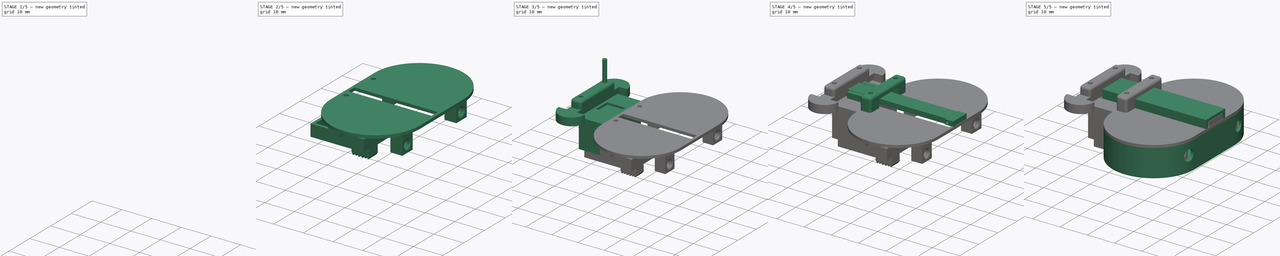
[diagram: build sequence overview — one tinted view per stage of 5, left to right]
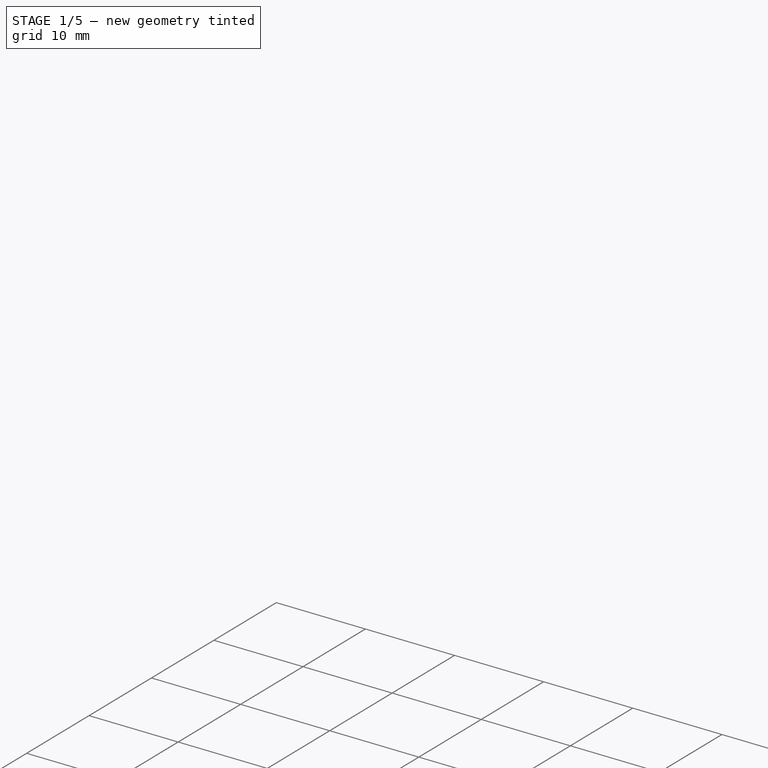
[diagram: stage 1 of 5 — iso view after this stage's code; geometry added in this stage tinted green]
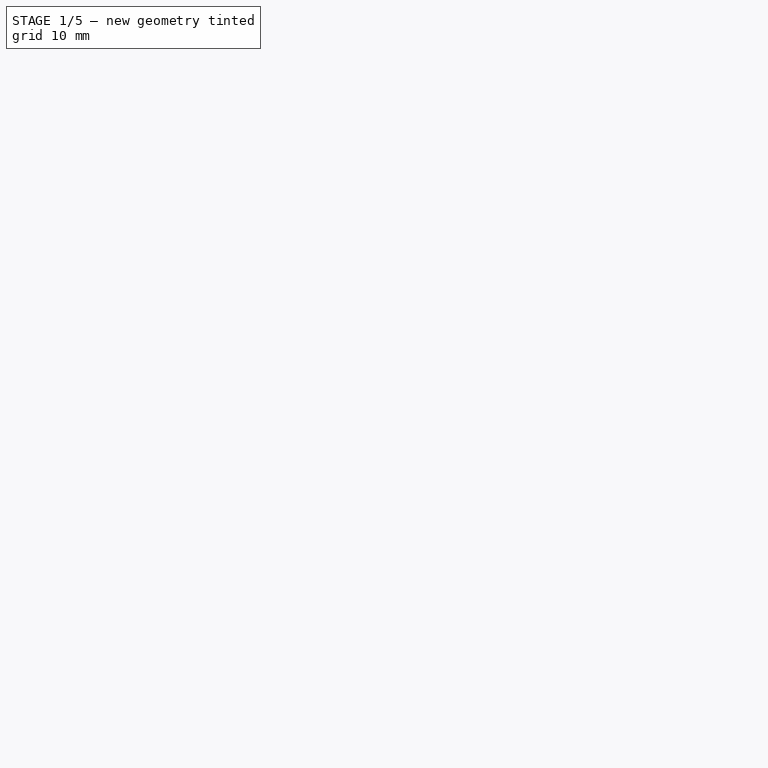
[diagram: stage 1 of 5 — front view after this stage's code; geometry added in this stage tinted green]
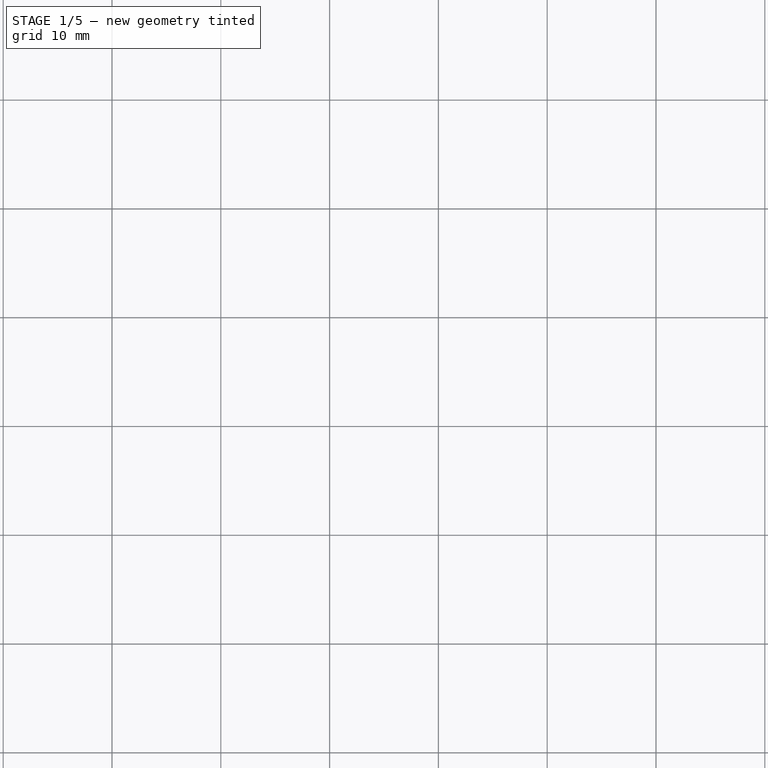
[diagram: stage 1 of 5 — top view after this stage's code; geometry added in this stage tinted green]
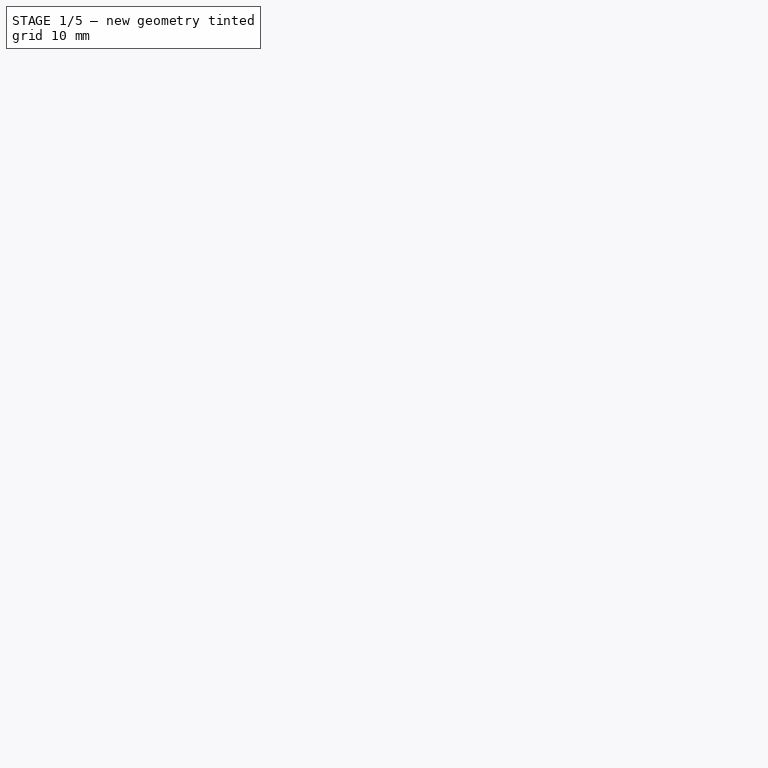
[diagram: stage 1 of 5 — right view after this stage's code; geometry added in this stage tinted green]
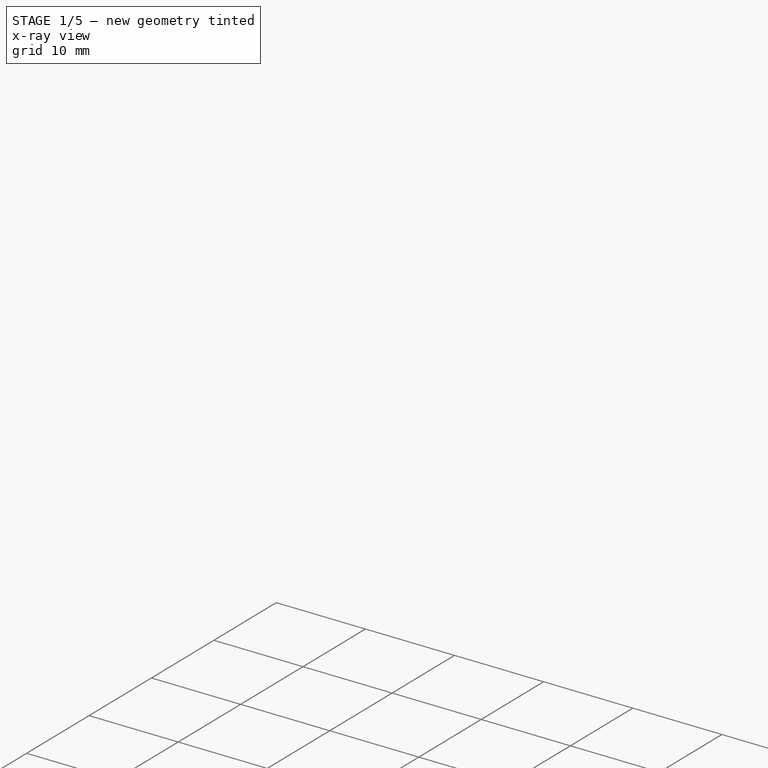
[diagram: stage 1 of 5 — x-ray composite at the iso view; earlier geometry ghosted, this stage's added geometry solid]
FCSTD DOCUMENT  (FreeCAD 0.16RUnknown)
Label: Diseño_inferior1
License: All rights reserved
LicenseURL: http://en.wikipedia.org/wiki/All_rights_reserved
objects: Part::Cut×31, Part::Box×30, Part::Cylinder×24, Part::MultiFuse×16, Sketcher::SketchObject×15, Part::Helix×9, Part::Fillet×8, Part::Sweep×7, PartDesign::Revolution×4, Part::Chamfer×3, PartDesign::Pad×1
note: 153 computed .brp shape members not serialized (recipe doc carries the construction recipe); baked Part::Feature solids carry a one-line shape summary decoded from their .brp

FEATURE [Part::Cylinder] Cylinder036  label="Cilindro036"
  Angle = 360
  Height = 6
  Placement = pos=(-14,-2.5,-4.5) rot=(0,1,0;1.5708rad)
  Radius = 2
FEATURE [Sketcher::SketchObject] Sketch035
  Placement = pos=(0,0,0) rot=(1,0,0;1.5708rad)
  sketch-geometry (6):
    g0: LineSegment StartX=1.7 StartY=0 StartZ=0 EndX=1.26 EndY=0.254034 EndZ=0
    g1: LineSegment StartX=1.26 StartY=0.254034 StartZ=0 EndX=1.26 EndY=3.7451 EndZ=0
    g2: LineSegment StartX=1.26 StartY=3.7451 StartZ=0 EndX=1.7 EndY=3.99913 EndZ=0
    g3: LineSegment StartX=1.7 StartY=3.99913 StartZ=0 EndX=2 EndY=3.99913 EndZ=0
    g4: LineSegment StartX=2 StartY=3.99913 StartZ=0 EndX=2 EndY=0 EndZ=0
    g5: LineSegment StartX=2 StartY=0 StartZ=0 EndX=1.7 EndY=0 EndZ=0
  constraints (17):
    c: PointOnObject(g0,g-1)
    c: Coincident(g0,g1)
    c: Vertical(g1)
    c: Coincident(g1,g2)
    c: Coincident(g2,g3)
    c: Horizontal(g3)
    c: Coincident(g3,g4)
    c: PointOnObject(g4,g-1)
    c: Vertical(g4)
    c: Coincident(g4,g5)
    c: Coincident(g5,g0)
    c: Angle(g2,g3) = 2.61799
    c: Angle(g5,g0) = 2.61799
    c: Equal(g0,g2)
    c: DistanceX(g-1,g1) = 1.26
    c: DistanceX(g-1,g2) = 1.7
    c: DistanceX(g-1,g3) = 2
FEATURE [PartDesign::Revolution] Revolution
  Angle = 360
  Axis = (0,0,1)
  Base = (0,0,0)
  Placement = pos=(0,0,0) rot=(1,0,0;1.5708rad)
  ReferenceAxis = -> Sketch035 [V_Axis]
  Reversed = true
  Sketch = -> Sketch035
FEATURE [Part::Helix] Helix  label="Espiral"
  Angle = 0
  Height = 5
  LocalCoord = 0
  Pitch = 1
  Radius = 1.25
  Style = 1
FEATURE [Sketcher::SketchObject] Sketch001
  Placement = pos=(0,0,0) rot=(1,0,0;1.5708rad)
  sketch-geometry (3):
    g0: LineSegment StartX=1.25 StartY=-0.259808 StartZ=0 EndX=1.25 EndY=0.259808 EndZ=0
    g1: LineSegment StartX=1.25 StartY=0.259808 StartZ=0 EndX=1.7 EndY=0 EndZ=0
    g2: LineSegment StartX=1.7 StartY=0 StartZ=0 EndX=1.25 EndY=-0.259808 EndZ=0
  constraints (9):
    c: Vertical(g0)
    c: Coincident(g0,g1)
    c: PointOnObject(g1,g-1)
    c: Coincident(g1,g2)
    c: Coincident(g2,g0)
    c: Angle(g1,g2) = 1.0472
    c: Equal(g1,g2)
    c: DistanceX(g-1,g0) = 1.25
    c: DistanceX(g-1,g1) = 1.7
FEATURE [Part::Sweep] Sweep018
  Frenet = true
  Sections = -> [Sketch001]
  Solid = true
  Spine = -> Helix
  Transition = 1
FEATURE [Part::Cut] Cut075
  Base = -> Revolution
  Placement = pos=(10.5,-18.5,-4.5) rot=(0,1,0;1.5708rad)
  Tool = -> Sweep018
FEATURE [Part::Box] Box056  label="Cubo056"
  Height = 7
  Length = 4
  Placement = pos=(-13.5,-5,-7) rot=(0,0,1;0rad)
  Width = 5
FEATURE [Part::Cylinder] Cylinder049  label="Cilindro049"
  Angle = 360
  Height = 6
  Placement = pos=(-14,-2.5,-4.5) rot=(0,1,0;1.5708rad)
  Radius = 2
FEATURE [Part::Cut] Cut076
  Base = -> Box056
  Placement = pos=(24,-16,0) rot=(0,0,1;0rad)
  Tool = -> Cylinder049
FEATURE [Sketcher::SketchObject] Sketch036
  Placement = pos=(0,0,0) rot=(1,0,0;1.5708rad)
  sketch-geometry (6):
    g0: LineSegment StartX=1.7 StartY=0 StartZ=0 EndX=1.26 EndY=0.254034 EndZ=0
    g1: LineSegment StartX=1.26 StartY=0.254034 StartZ=0 EndX=1.26 EndY=3.7451 EndZ=0
    g2: LineSegment StartX=1.26 StartY=3.7451 StartZ=0 EndX=1.7 EndY=3.99913 EndZ=0
    g3: LineSegment StartX=1.7 StartY=3.99913 StartZ=0 EndX=2 EndY=3.99913 EndZ=0
    g4: LineSegment StartX=2 StartY=3.99913 StartZ=0 EndX=2 EndY=0 EndZ=0
    g5: LineSegment StartX=2 StartY=0 StartZ=0 EndX=1.7 EndY=0 EndZ=0
  constraints (17):
    c: PointOnObject(g0,g-1)
    c: Coincident(g0,g1)
    c: Vertical(g1)
    c: Coincident(g1,g2)
    c: Coincident(g2,g3)
    c: Horizontal(g3)
    c: Coincident(g3,g4)
    c: PointOnObject(g4,g-1)
    c: Vertical(g4)
    c: Coincident(g4,g5)
    c: Coincident(g5,g0)
    c: Angle(g2,g3) = 2.61799
    c: Angle(g5,g0) = 2.61799
    c: Equal(g0,g2)
    c: DistanceX(g-1,g1) = 1.26
    c: DistanceX(g-1,g2) = 1.7
    c: DistanceX(g-1,g3) = 2
FEATURE [PartDesign::Revolution] Revolution001
  Angle = 360
  Axis = (0,0,1)
  Base = (0,0,0)
  Placement = pos=(0,0,0) rot=(1,0,0;1.5708rad)
  ReferenceAxis = -> Sketch036 [V_Axis]
  Reversed = true
  Sketch = -> Sketch036
FEATURE [Part::Helix] Helix018  label="Espiral018"
  Angle = 0
  Height = 5
  LocalCoord = 0
  Pitch = 1
  Radius = 1.25
  Style = 1
FEATURE [Sketcher::SketchObject] Sketch037
  Placement = pos=(0,0,0) rot=(1,0,0;1.5708rad)
  sketch-geometry (3):
    g0: LineSegment StartX=1.25 StartY=-0.259808 StartZ=0 EndX=1.25 EndY=0.259808 EndZ=0
    g1: LineSegment StartX=1.25 StartY=0.259808 StartZ=0 EndX=1.7 EndY=0 EndZ=0
    g2: LineSegment StartX=1.7 StartY=0 StartZ=0 EndX=1.25 EndY=-0.259808 EndZ=0
  constraints (9):
    c: Vertical(g0)
    c: Coincident(g0,g1)
    c: PointOnObject(g1,g-1)
    c: Coincident(g1,g2)
    c: Coincident(g2,g0)
    c: Angle(g1,g2) = 1.0472
    c: Equal(g1,g2)
    c: DistanceX(g-1,g0) = 1.25
    c: DistanceX(g-1,g1) = 1.7
FEATURE [Part::Sweep] Sweep019
  Frenet = true
  Sections = -> [Sketch037]
  Solid = true
  Spine = -> Helix018
  Transition = 1
FEATURE [Part::Cut] Cut077
  Base = -> Revolution001
  Placement = pos=(10.5,-18.5,-4.5) rot=(0,1,0;1.5708rad)
  Tool = -> Sweep019
FEATURE [Part::MultiFuse] Fusion002032
  Placement = pos=(-75,116.5,92) rot=(0,0,1;0rad)
  Shapes = -> [Cut076,Cut077]
FEATURE [Part::Box] Box057  label="Cubo057"
  Height = 7
  Length = 4
  Placement = pos=(-13.5,-5,-7) rot=(0,0,1;0rad)
  Width = 5
FEATURE [Part::Cylinder] Cylinder050  label="Cilindro050"
  Angle = 360
  Height = 6
  Placement = pos=(-14,-2.5,-4.5) rot=(0,1,0;1.5708rad)
  Radius = 2
FEATURE [Part::Cut] Cut078
  Base = -> Box057
  Placement = pos=(24,-16,0) rot=(0,0,1;0rad)
  Tool = -> Cylinder050
FEATURE [Sketcher::SketchObject] Sketch038
  Placement = pos=(0,0,0) rot=(1,0,0;1.5708rad)
  sketch-geometry (6):
    g0: LineSegment StartX=1.7 StartY=0 StartZ=0 EndX=1.26 EndY=0.254034 EndZ=0
    g1: LineSegment StartX=1.26 StartY=0.254034 StartZ=0 EndX=1.26 EndY=3.7451 EndZ=0
    g2: LineSegment StartX=1.26 StartY=3.7451 StartZ=0 EndX=1.7 EndY=3.99913 EndZ=0
    g3: LineSegment StartX=1.7 StartY=3.99913 StartZ=0 EndX=2 EndY=3.99913 EndZ=0
    g4: LineSegment StartX=2 StartY=3.99913 StartZ=0 EndX=2 EndY=0 EndZ=0
    g5: LineSegment StartX=2 StartY=0 StartZ=0 EndX=1.7 EndY=0 EndZ=0
  constraints (17):
    c: PointOnObject(g0,g-1)
    c: Coincident(g0,g1)
    c: Vertical(g1)
    c: Coincident(g1,g2)
    c: Coincident(g2,g3)
    c: Horizontal(g3)
    c: Coincident(g3,g4)
    c: PointOnObject(g4,g-1)
    c: Vertical(g4)
    c: Coincident(g4,g5)
    c: Coincident(g5,g0)
    c: Angle(g2,g3) = 2.61799
    c: Angle(g5,g0) = 2.61799
    c: Equal(g0,g2)
    c: DistanceX(g-1,g1) = 1.26
    c: DistanceX(g-1,g2) = 1.7
    c: DistanceX(g-1,g3) = 2
FEATURE [PartDesign::Revolution] Revolution002
  Angle = 360
  Axis = (0,0,1)
  Base = (0,0,0)
  Placement = pos=(0,0,0) rot=(1,0,0;1.5708rad)
  ReferenceAxis = -> Sketch038 [V_Axis]
  Reversed = true
  Sketch = -> Sketch038
FEATURE [Part::Helix] Helix019  label="Espiral019"
  Angle = 0
  Height = 5
  LocalCoord = 0
  Pitch = 1
  Radius = 1.25
  Style = 1
FEATURE [Sketcher::SketchObject] Sketch039
  Placement = pos=(0,0,0) rot=(1,0,0;1.5708rad)
  sketch-geometry (3):
    g0: LineSegment StartX=1.25 StartY=-0.259808 StartZ=0 EndX=1.25 EndY=0.259808 EndZ=0
    g1: LineSegment StartX=1.25 StartY=0.259808 StartZ=0 EndX=1.7 EndY=0 EndZ=0
    g2: LineSegment StartX=1.7 StartY=0 StartZ=0 EndX=1.25 EndY=-0.259808 EndZ=0
  constraints (9):
    c: Vertical(g0)
    c: Coincident(g0,g1)
    c: PointOnObject(g1,g-1)
    c: Coincident(g1,g2)
    c: Coincident(g2,g0)
    c: Angle(g1,g2) = 1.0472
    c: Equal(g1,g2)
    c: DistanceX(g-1,g0) = 1.25
    c: DistanceX(g-1,g1) = 1.7
FEATURE [Part::Sweep] Sweep020
  Frenet = true
  Sections = -> [Sketch039]
  Solid = true
  Spine = -> Helix019
  Transition = 1
FEATURE [Part::Cut] Cut079
  Base = -> Revolution002
  Placement = pos=(10.5,-18.5,-4.5) rot=(0,1,0;1.5708rad)
  Tool = -> Sweep020
FEATURE [Part::MultiFuse] Fusion002033
  Placement = pos=(-75,142.5,92) rot=(0,0,1;0rad)
  Shapes = -> [Cut078,Cut079]
FEATURE [Part::Box] Box058  label="Cubo058"
  Height = 7
  Length = 4
  Placement = pos=(-13.5,-5,-7) rot=(0,0,1;0rad)
  Width = 5
FEATURE [Part::Cylinder] Cylinder051  label="Cilindro051"
  Angle = 360
  Height = 6
  Placement = pos=(-14,-2.5,-4.5) rot=(0,1,0;1.5708rad)
  Radius = 2
FEATURE [Part::Cut] Cut080
  Base = -> Box058
  Placement = pos=(24,-16,0) rot=(0,0,1;0rad)
  Tool = -> Cylinder051
FEATURE [Sketcher::SketchObject] Sketch040
  Placement = pos=(0,0,0) rot=(1,0,0;1.5708rad)
  sketch-geometry (6):
    g0: LineSegment StartX=1.7 StartY=0 StartZ=0 EndX=1.26 EndY=0.254034 EndZ=0
    g1: LineSegment StartX=1.26 StartY=0.254034 StartZ=0 EndX=1.26 EndY=3.7451 EndZ=0
    g2: LineSegment StartX=1.26 StartY=3.7451 StartZ=0 EndX=1.7 EndY=3.99913 EndZ=0
    g3: LineSegment StartX=1.7 StartY=3.99913 StartZ=0 EndX=2 EndY=3.99913 EndZ=0
    g4: LineSegment StartX=2 StartY=3.99913 StartZ=0 EndX=2 EndY=0 EndZ=0
    g5: LineSegment StartX=2 StartY=0 StartZ=0 EndX=1.7 EndY=0 EndZ=0
  constraints (17):
    c: PointOnObject(g0,g-1)
    c: Coincident(g0,g1)
    c: Vertical(g1)
    c: Coincident(g1,g2)
    c: Coincident(g2,g3)
    c: Horizontal(g3)
    c: Coincident(g3,g4)
    c: PointOnObject(g4,g-1)
    c: Vertical(g4)
    c: Coincident(g4,g5)
    c: Coincident(g5,g0)
    c: Angle(g2,g3) = 2.61799
    c: Angle(g5,g0) = 2.61799
    c: Equal(g0,g2)
    c: DistanceX(g-1,g1) = 1.26
    c: DistanceX(g-1,g2) = 1.7
    c: DistanceX(g-1,g3) = 2
FEATURE [PartDesign::Revolution] Revolution003
  Angle = 360
  Axis = (0,0,1)
  Base = (0,0,0)
  Placement = pos=(0,0,0) rot=(1,0,0;1.5708rad)
  ReferenceAxis = -> Sketch040 [V_Axis]
  Reversed = true
  Sketch = -> Sketch040
FEATURE [Part::Helix] Helix020  label="Espiral020"
  Angle = 0
  Height = 5
  LocalCoord = 0
  Pitch = 1
  Radius = 1.25
  Style = 1
FEATURE [Sketcher::SketchObject] Sketch041
  Placement = pos=(0,0,0) rot=(1,0,0;1.5708rad)
  sketch-geometry (3):
    g0: LineSegment StartX=1.25 StartY=-0.259808 StartZ=0 EndX=1.25 EndY=0.259808 EndZ=0
    g1: LineSegment StartX=1.25 StartY=0.259808 StartZ=0 EndX=1.7 EndY=0 EndZ=0
    g2: LineSegment StartX=1.7 StartY=0 StartZ=0 EndX=1.25 EndY=-0.259808 EndZ=0
  constraints (9):
    c: Vertical(g0)
    c: Coincident(g0,g1)
    c: PointOnObject(g1,g-1)
    c: Coincident(g1,g2)
    c: Coincident(g2,g0)
    c: Angle(g1,g2) = 1.0472
    c: Equal(g1,g2)
    c: DistanceX(g-1,g0) = 1.25
    c: DistanceX(g-1,g1) = 1.7
FEATURE [Part::Sweep] Sweep021
  Frenet = true
  Sections = -> [Sketch041]
  Solid = true
  Spine = -> Helix020
  Transition = 1
FEATURE [Part::Cut] Cut081
  Base = -> Revolution003
  Placement = pos=(10.5,-18.5,-4.5) rot=(0,1,0;1.5708rad)
  Tool = -> Sweep021
FEATURE [Part::MultiFuse] Fusion002034
  Placement = pos=(-54,142.5,92) rot=(0,0,1;0rad)
  Shapes = -> [Cut080,Cut081]
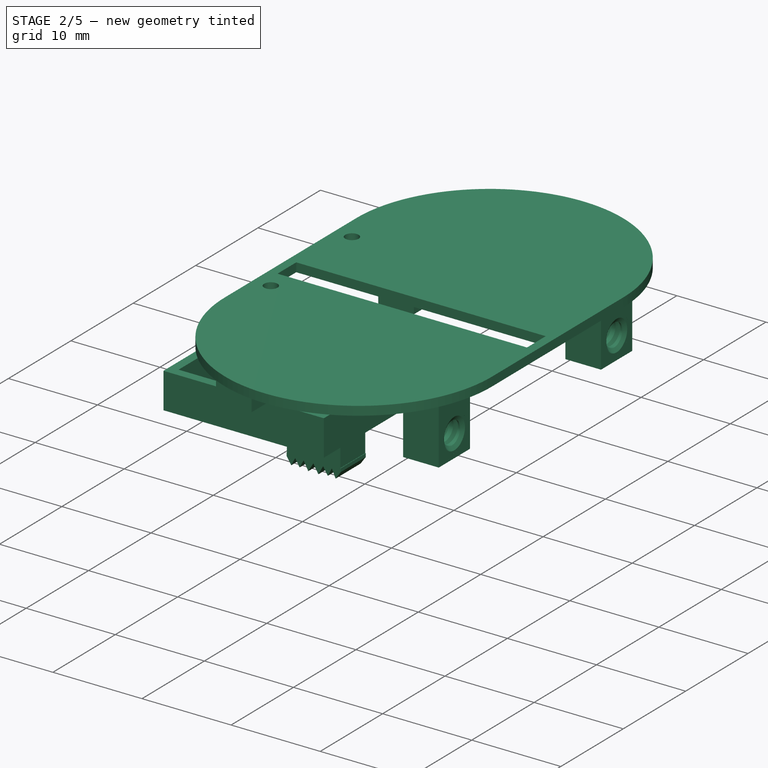
[diagram: stage 2 of 5 — iso view after this stage's code; geometry added in this stage tinted green]
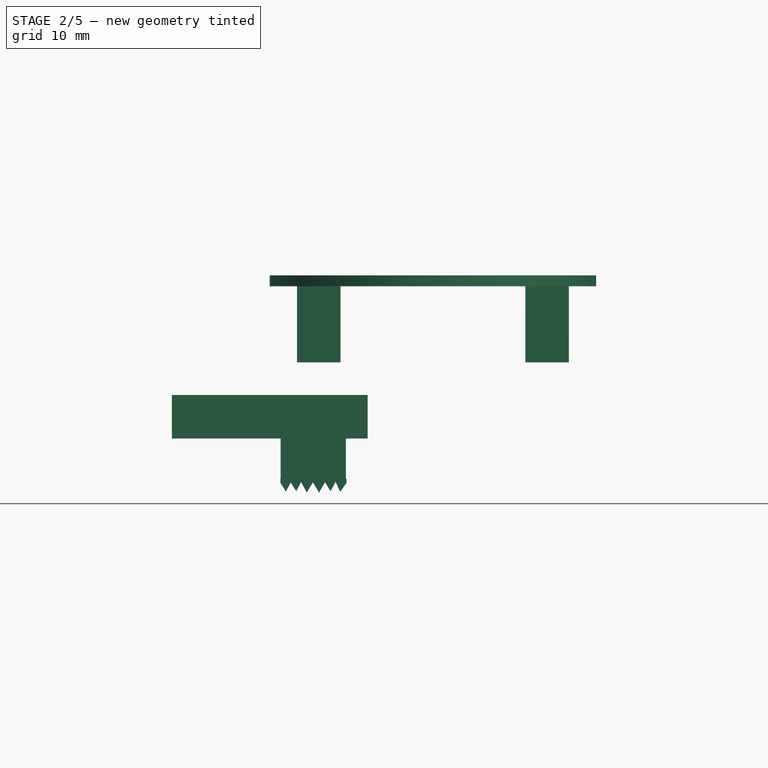
[diagram: stage 2 of 5 — front view after this stage's code; geometry added in this stage tinted green]
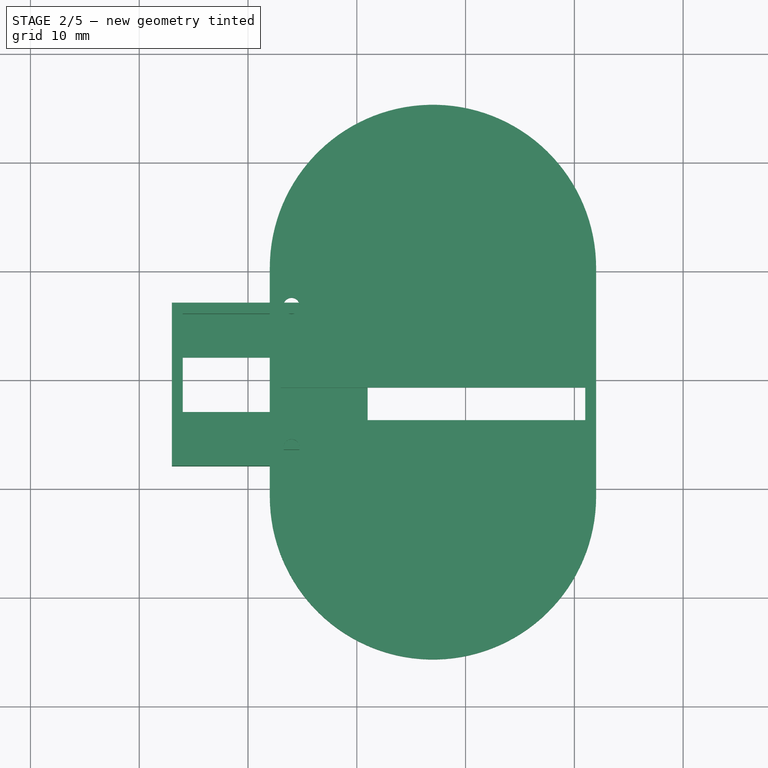
[diagram: stage 2 of 5 — top view after this stage's code; geometry added in this stage tinted green]
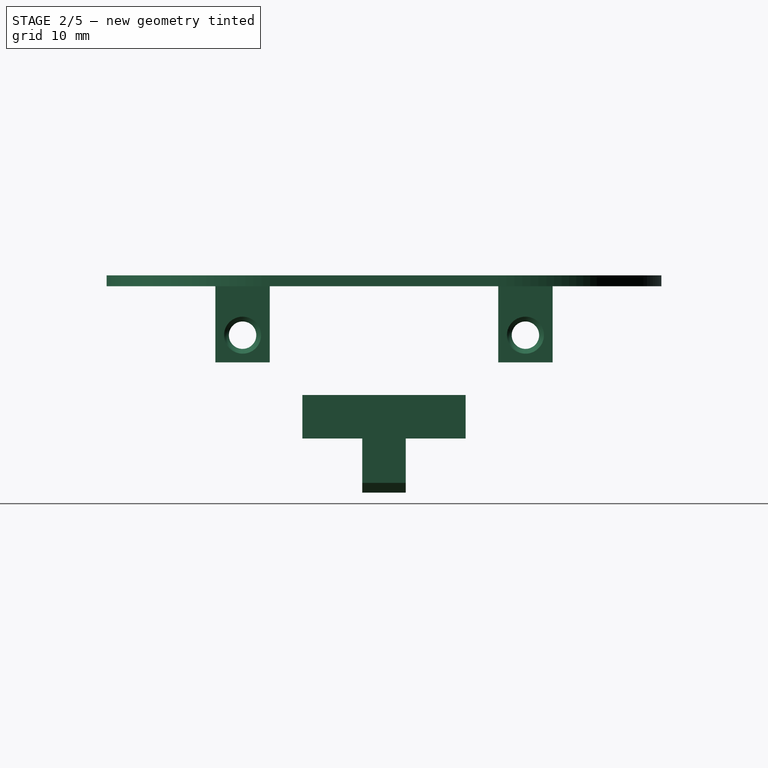
[diagram: stage 2 of 5 — right view after this stage's code; geometry added in this stage tinted green]
FEATURE [Part::Cylinder] Cylinder018  label="Cilindro018"
  Angle = 180
  Height = 1
  Placement = pos=(-13,70,44) rot=(0,0,1;0rad)
  Radius = 15
FEATURE [Part::Cylinder] Cylinder019  label="Cilindro019"
  Angle = 180
  Height = 1
  Placement = pos=(-13,49,45) rot=(1,0,0;3.14159rad)
  Radius = 15
FEATURE [Part::Box] Box002  label="Cubo002"
  Height = 1
  Length = 30
  Placement = pos=(-28,49,44) rot=(0,0,1;0rad)
  Width = 21
FEATURE [Part::MultiFuse] Fusion001
  Shapes = -> [Cylinder019,Cylinder018,Box002]
FEATURE [Part::Box] Box039  label="Cubo039"
  Height = 1
  Length = 28
  Placement = pos=(-27,56,44) rot=(0,0,1;0rad)
  Width = 3
FEATURE [Part::Cut] Cut056
  Base = -> Fusion001
  Tool = -> Box039
FEATURE [Part::Cylinder] Cylinder038  label="Cilindro038"
  Angle = 360
  Height = 10
  Placement = pos=(-26,66.5,42) rot=(0,0,1;0rad)
  Radius = 0.75
FEATURE [Part::Cylinder] Cylinder039  label="Cilindro039"
  Angle = 360
  Height = 10
  Placement = pos=(-26,53.5,42) rot=(0,0,1;0rad)
  Radius = 0.75
FEATURE [Part::Cut] Cut059
  Base = -> Cut056
  Tool = -> Cylinder038
FEATURE [Part::Cut] Cut060
  Base = -> Cut059
  Placement = pos=(-39,51.5,48) rot=(0,0,1;0rad)
  Tool = -> Cylinder039
FEATURE [Part::Box] Box051  label="Cubo051"
  Height = 4
  Length = 18
  Width = 15
FEATURE [Part::Box] Box052  label="Cubo052"
  Height = 3
  Length = 16
  Placement = pos=(1,1,1) rot=(0,0,1;0rad)
  Width = 13
FEATURE [Part::Cut] Cut073
  Base = -> Box051
  Tool = -> Box052
FEATURE [Part::Box] Box053  label="Cubo053"
  Height = 10
  Length = 16
  Placement = pos=(1,5,-5) rot=(0,0,1;0rad)
  Width = 5
FEATURE [Part::Cut] Cut074
  Base = -> Cut073
  Tool = -> Box053
FEATURE [Part::Box] Box054  label="Cubo054"
  Height = 2.8
  Length = 8
  Placement = pos=(8,1.5,1) rot=(0,0,1;0rad)
  Width = 12
FEATURE [Part::Box] Box055  label="Cubo055"
  Height = 5
  Length = 6
  Placement = pos=(2,-4,-4) rot=(0,0,1;0rad)
  Width = 4
FEATURE [Sketcher::SketchObject] Sketch
  Placement = pos=(0,0,0) rot=(1,0,0;1.5708rad)
  sketch-geometry (15):
    g0: LineSegment StartX=1.97462 StartY=-4.07912 StartZ=0 EndX=2.48592 EndY=-4.88456 EndZ=0
    g1: LineSegment StartX=2.48592 StartY=-4.88456 StartZ=0 EndX=2.9278 EndY=-4.03904 EndZ=0
    g2: LineSegment StartX=2.9278 StartY=-4.03904 StartZ=0 EndX=3.43199 EndY=-4.84464 EndZ=0
    g3: LineSegment StartX=3.43199 StartY=-4.84464 StartZ=0 EndX=3.87756 EndY=-4.0052 EndZ=0
    g4: LineSegment StartX=3.87756 StartY=-4.0052 StartZ=0 EndX=4.39855 EndY=-4.96392 EndZ=0
    g5: LineSegment StartX=4.39855 StartY=-4.96392 StartZ=0 EndX=4.96834 EndY=-4.03337 EndZ=0
    g6: LineSegment StartX=4.96834 StartY=-4.03337 StartZ=0 EndX=5.53248 EndY=-4.977 EndZ=0
    g7: LineSegment StartX=5.53248 StartY=-4.977 StartZ=0 EndX=6.06762 EndY=-4.01662 EndZ=0
    g8: LineSegment StartX=6.06762 StartY=-4.01662 StartZ=0 EndX=6.58875 EndY=-4.85016 EndZ=0
    g9: LineSegment StartX=6.58875 StartY=-4.85016 StartZ=0 EndX=7.05005 EndY=-3.98207 EndZ=0
    g10: LineSegment StartX=7.05005 StartY=-3.98207 StartZ=0 EndX=7.46801 EndY=-4.90009 EndZ=0
    g11: LineSegment StartX=7.46801 StartY=-4.90009 StartZ=0 EndX=8.05406 EndY=-4.07912 EndZ=0
    g12: LineSegment StartX=8.05406 StartY=-4.07912 StartZ=0 EndX=8.05406 EndY=-3.69393 EndZ=0
    g13: LineSegment StartX=8.05406 StartY=-3.69393 StartZ=0 EndX=1.97462 EndY=-3.69393 EndZ=0
    g14: LineSegment StartX=1.97462 StartY=-3.69393 StartZ=0 EndX=1.97462 EndY=-4.07912 EndZ=0
  constraints (31):
    c: Coincident(g0,g1)
    c: Coincident(g1,g2)
    c: Coincident(g2,g3)
    c: Coincident(g3,g4)
    c: Coincident(g4,g5)
    c: Coincident(g5,g6)
    c: Coincident(g6,g7)
    c: Coincident(g7,g8)
    c: Coincident(g8,g9)
    c: Coincident(g9,g10)
    c: Coincident(g10,g11)
    c: Coincident(g11,g12)
    c: Vertical(g12)
    c: Coincident(g12,g13)
    c: Coincident(g13,g14)
    c: Coincident(g14,g0)
    c: Vertical(g14)
    c: Equal(g11,g10)
    c: Angle(g11,g10) = 1.0472
    c: Equal(g9,g8)
    c: Angle(g9,g8) = 1.0472
    c: Angle(g7,g6) = 1.0472
    c: Equal(g6,g7)
    c: Equal(g4,g5)
    c: Angle(g5,g4) = 1.0472
    c: Equal(g2,g3)
    c: Angle(g3,g2) = 1.0472
    c: Equal(g0,g1)
    c: Angle(g1,g0) = 1.0472
    c: Equal(g14,g12)
    c: Angle(g14,g13) = 1.5708
FEATURE [PartDesign::Pad] Pad
  Length = 4
  Length2 = 100
  Placement = pos=(0,0,0) rot=(1,0,0;1.5708rad)
  Sketch = -> Sketch
  Type = 0
FEATURE [Part::Chamfer] Chamfer002
  Base = -> Box054
  Edges = 1 edges r=1: [Edge2]
  Placement = pos=(1,0,0) rot=(0,0,1;0rad)
FEATURE [Part::MultiFuse] Fusion002029
  Placement = pos=(8,9.5,0) rot=(0,0,1;0rad)
  Shapes = -> [Box055,Pad]
FEATURE [Part::MultiFuse] Fusion002030
  Placement = pos=(-37,52,30) rot=(0,0,1;0rad)
  Shapes = -> [Chamfer002,Fusion002029,Cut074]
FEATURE [Part::Box] Box033  label="Cubo033"
  Height = 7
  Length = 4
  Placement = pos=(-13.5,-5,-7) rot=(0,0,1;0rad)
  Width = 5
FEATURE [Part::Cut] Cut052
  Base = -> Box033
  Placement = pos=(24,-16,0) rot=(0,0,1;0rad)
  Tool = -> Cylinder036
FEATURE [Part::MultiFuse] Fusion002031
  Placement = pos=(-54,116.5,92) rot=(0,0,1;0rad)
  Shapes = -> [Cut052,Cut075]
FEATURE [Part::MultiFuse] Fusion002035
  Placement = pos=(39,-51.5,-48) rot=(0,0,1;0rad)
  Shapes = -> [Cut060,Fusion002031,Fusion002032,Fusion002033,Fusion002034]
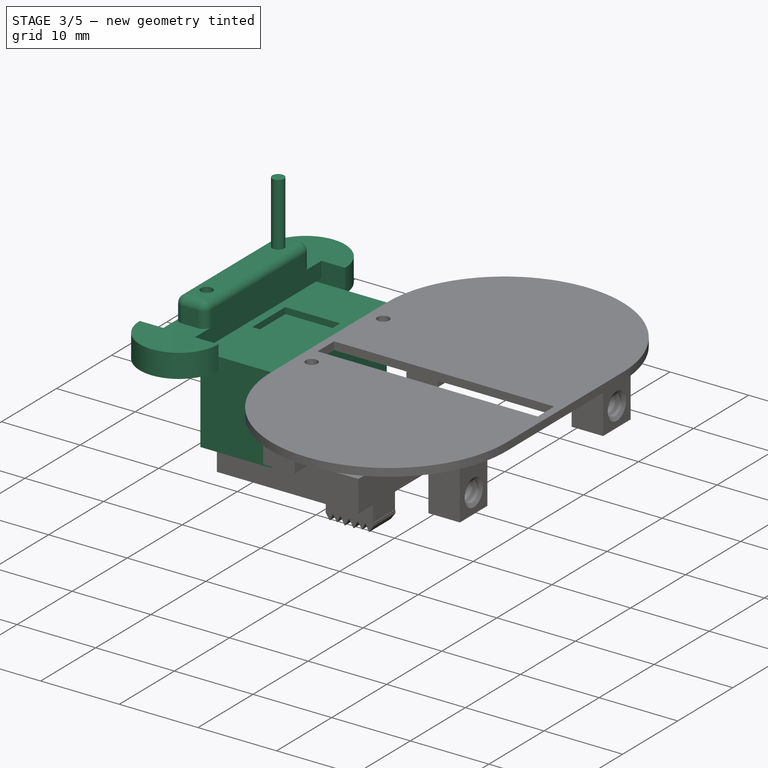
[diagram: stage 3 of 5 — iso view after this stage's code; geometry added in this stage tinted green]
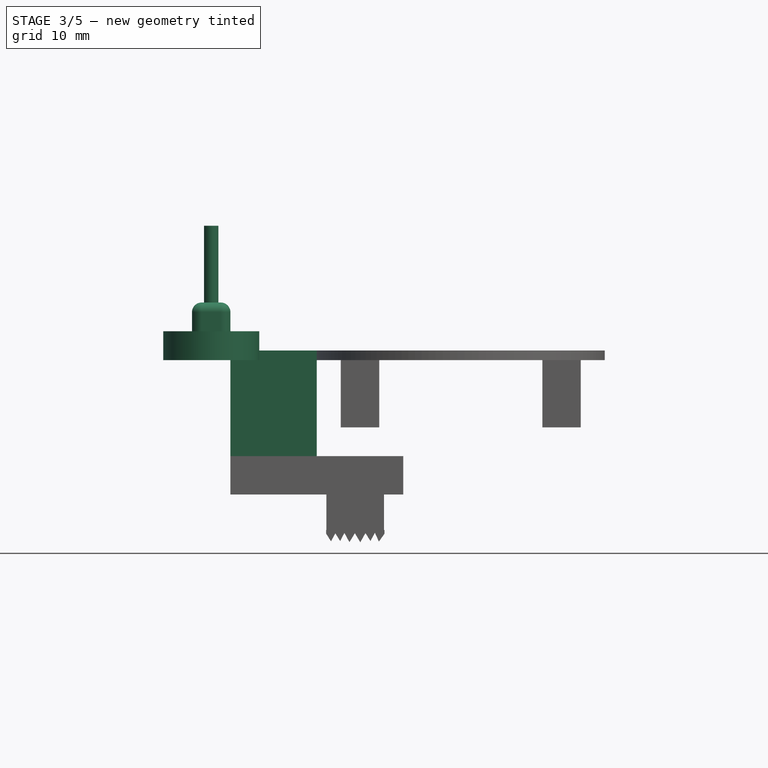
[diagram: stage 3 of 5 — front view after this stage's code; geometry added in this stage tinted green]
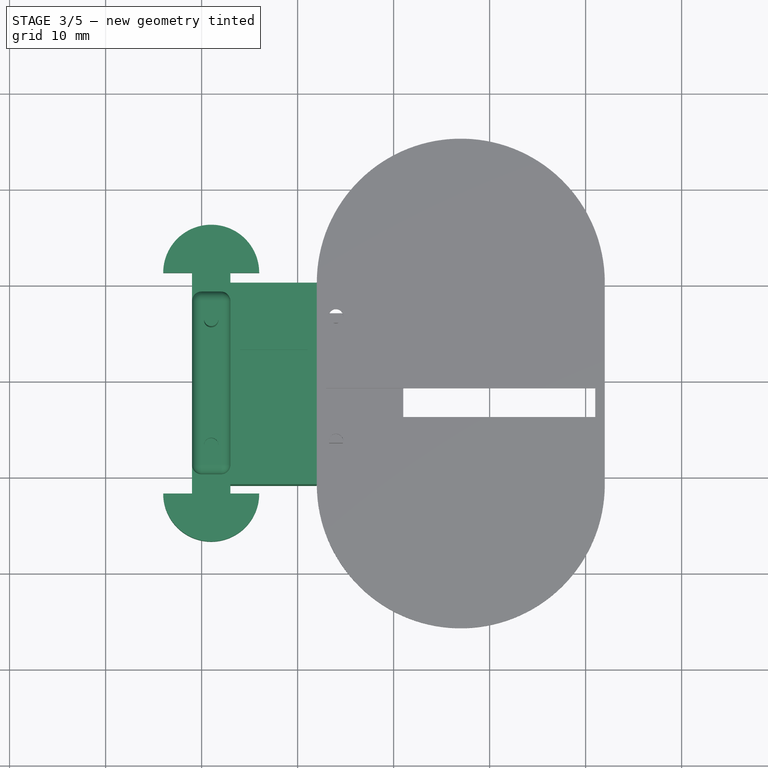
[diagram: stage 3 of 5 — top view after this stage's code; geometry added in this stage tinted green]
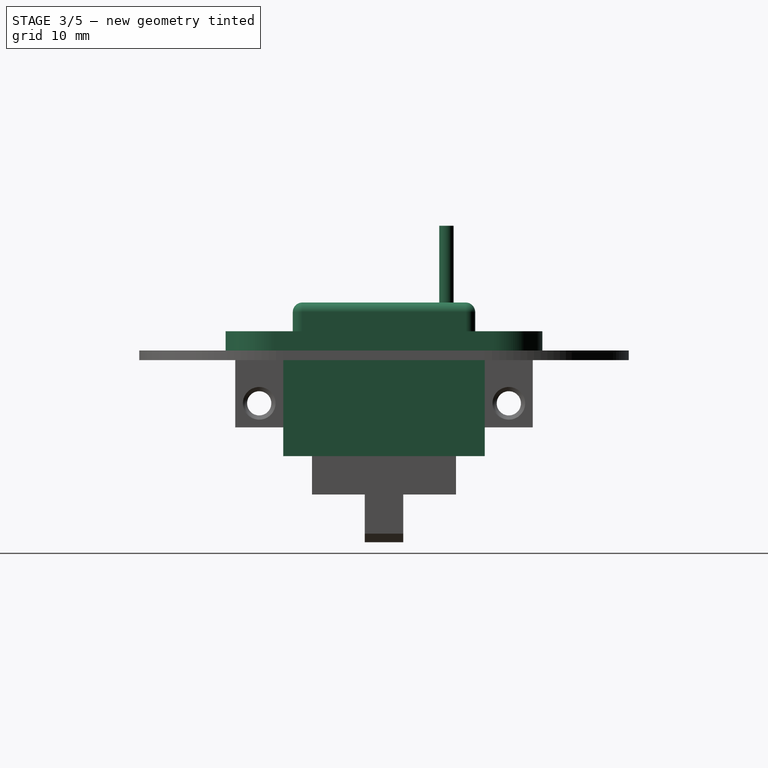
[diagram: stage 3 of 5 — right view after this stage's code; geometry added in this stage tinted green]
FEATURE [Part::Box] Box004  label="Cubo004"
  Height = 5
  Length = 4
  Placement = pos=(-2,50,45) rot=(0,0,1;0rad)
  Width = 19
FEATURE [Part::Fillet] Fillet004
  Base = -> Box004
  Edges = 1 edges r=1: [Edge6]
FEATURE [Part::Fillet] Fillet005
  Base = -> Fillet004
  Edges = 1 edges r=1: [Edge15]
FEATURE [Part::Fillet] Fillet006
  Base = -> Fillet005
  Edges = 1 edges r=1: [Edge7]
FEATURE [Part::Fillet] Fillet007
  Base = -> Fillet006
  Edges = 1 edges r=1: [Edge3]
  Placement = pos=(-39,0,0) rot=(0,0,1;0rad)
FEATURE [Part::Cylinder] Cylinder042  label="Cilindro042"
  Angle = 360
  Height = 10
  Placement = pos=(-39,53,48) rot=(0,0,1;0rad)
  Radius = 0.75
FEATURE [Part::Cylinder] Cylinder043  label="Cilindro043"
  Angle = 360
  Height = 10
  Placement = pos=(-39,66,48) rot=(0,0,1;0rad)
  Radius = 0.75
FEATURE [Part::Cut] Cut062
  Base = -> Fillet007
  Tool = -> Cylinder042
FEATURE [Part::Helix] Helix003  label="Espiral003"
  Angle = 0
  Height = 5
  LocalCoord = 0
  Pitch = 1
  Radius = 1.25
  Style = 1
FEATURE [Part::Helix] Helix014  label="Espiral014"
  Angle = 0
  Height = 5
  LocalCoord = 0
  Pitch = 1
  Radius = 1.25
  Style = 1
FEATURE [Part::Helix] Helix015  label="Espiral015"
  Angle = 0
  Height = 5
  LocalCoord = 0
  Pitch = 1
  Radius = 1.25
  Style = 1
FEATURE [Part::Helix] Helix016  label="Espiral016"
  Angle = 0
  Height = 5
  LocalCoord = 0
  Pitch = 1
  Radius = 1.25
  Style = 1
FEATURE [Part::Box] Box043  label="Cubo043"
  Height = 2
  Length = 4
  Placement = pos=(-41,46,45) rot=(0,0,1;0rad)
  Width = 5
FEATURE [Part::Cylinder] Cylinder047  label="Cilindro047"
  Angle = 180
  Height = 3
  Placement = pos=(-39,48,44) rot=(0,0,1;3.14159rad)
  Radius = 5
FEATURE [Part::MultiFuse] Fusion002024
  Shapes = -> [Box043,Cylinder047]
FEATURE [Part::Box] Box044  label="Cubo044"
  Height = 2
  Length = 4
  Placement = pos=(-41,46,45) rot=(0,0,1;0rad)
  Width = 5
FEATURE [Part::Cylinder] Cylinder048  label="Cilindro048"
  Angle = 180
  Height = 3
  Placement = pos=(-39,48,44) rot=(0,0,1;3.14159rad)
  Radius = 5
FEATURE [Part::MultiFuse] Fusion002025
  Placement = pos=(-78,119,0) rot=(0,0,1;3.14159rad)
  Shapes = -> [Box044,Cylinder048]
FEATURE [Part::Box] Box045  label="Cubo045"
  Height = 4
  Length = 7
  Placement = pos=(-13,-7,2) rot=(1,0,0;3.14159rad)
  Width = 12
FEATURE [Part::Chamfer] Chamfer
  Base = -> Box045
  Edges = 1 edges r=1: [Edge2]
  Placement = pos=(-23.5,-2,0.5) rot=(0,0,1;1.5708rad)
FEATURE [Part::Box] Box046  label="Cubo046"
  Height = 7.4
  Length = 6
  Placement = pos=(-13,-15,2.5) rot=(0,0,1;0rad)
  Width = 7
FEATURE [Part::MultiFuse] Fusion002026
  Placement = pos=(-44,70,34.3) rot=(0,0,1;1.5708rad)
  Shapes = -> [Chamfer,Box046]
FEATURE [Part::Box] Box047  label="Cubo047"
  Height = 11
  Length = 9
  Placement = pos=(-37,49,34) rot=(0,0,1;0rad)
  Width = 21
FEATURE [Part::Box] Box048  label="Cubo048"
  Height = 10
  Length = 7
  Placement = pos=(-13,-7,7.5) rot=(1,0,0;3.14159rad)
  Width = 12
FEATURE [Part::Chamfer] Chamfer001
  Base = -> Box048
  Edges = 1 edges r=1: [Edge2]
  Placement = pos=(-20,-2,0.5) rot=(0,0,1;1.5708rad)
FEATURE [Part::Box] Box049  label="Cubo049"
  Height = 8
  Length = 6
  Placement = pos=(-9.5,-15,2.5) rot=(0,0,1;0rad)
  Width = 7
FEATURE [Part::MultiFuse] Fusion002028
  Placement = pos=(-44,66.5,34.8) rot=(0,0,1;1.5708rad)
  Shapes = -> [Chamfer001,Box049]
FEATURE [Part::Cut] Cut072
  Base = -> Box047
  Tool = -> Fusion002028
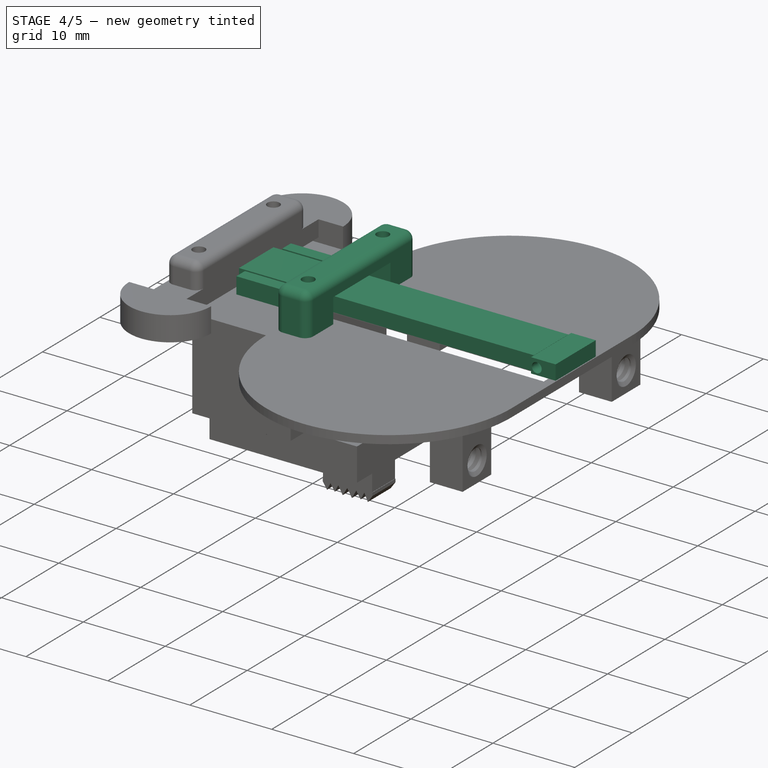
[diagram: stage 4 of 5 — iso view after this stage's code; geometry added in this stage tinted green]
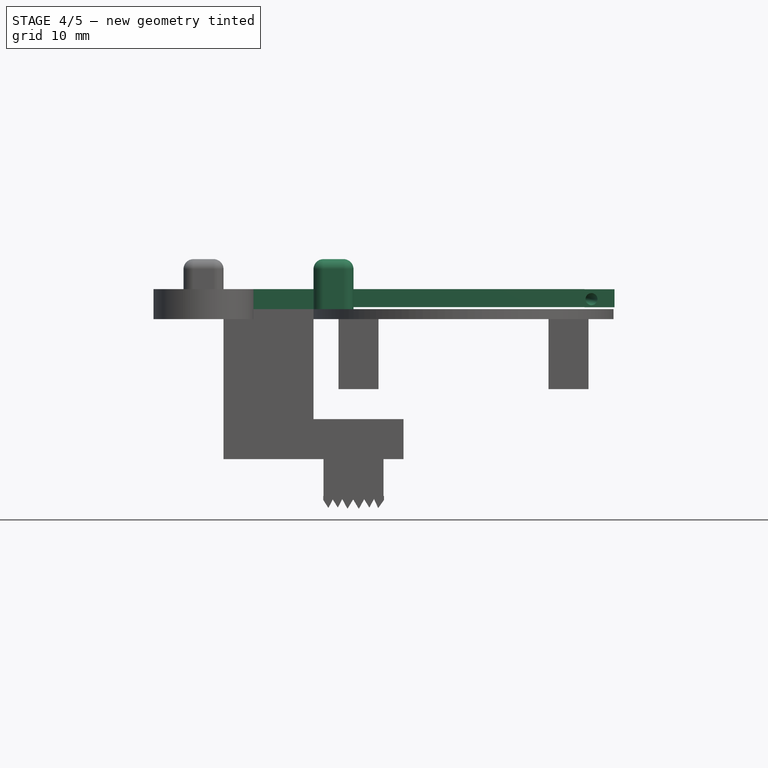
[diagram: stage 4 of 5 — front view after this stage's code; geometry added in this stage tinted green]
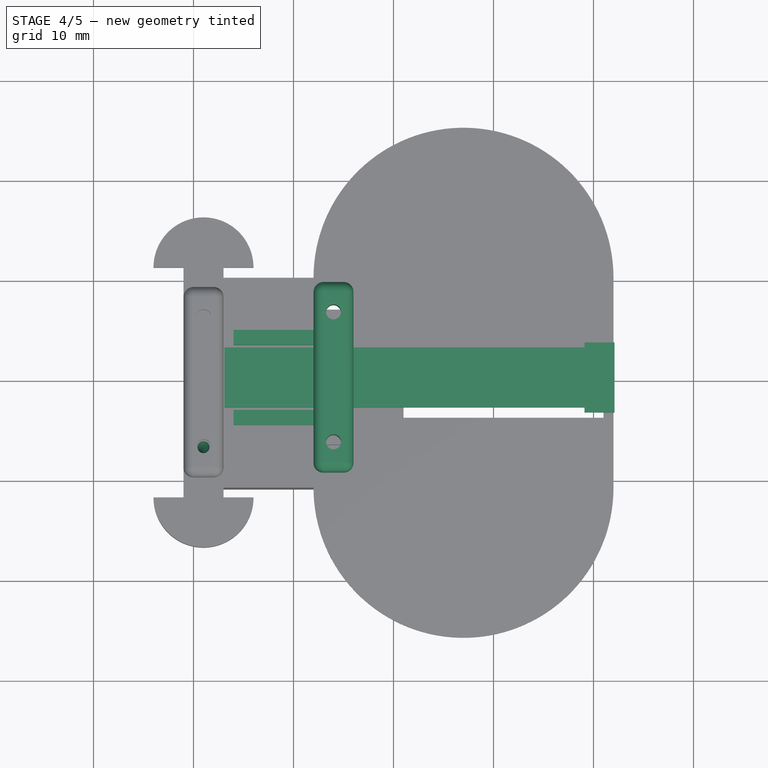
[diagram: stage 4 of 5 — top view after this stage's code; geometry added in this stage tinted green]
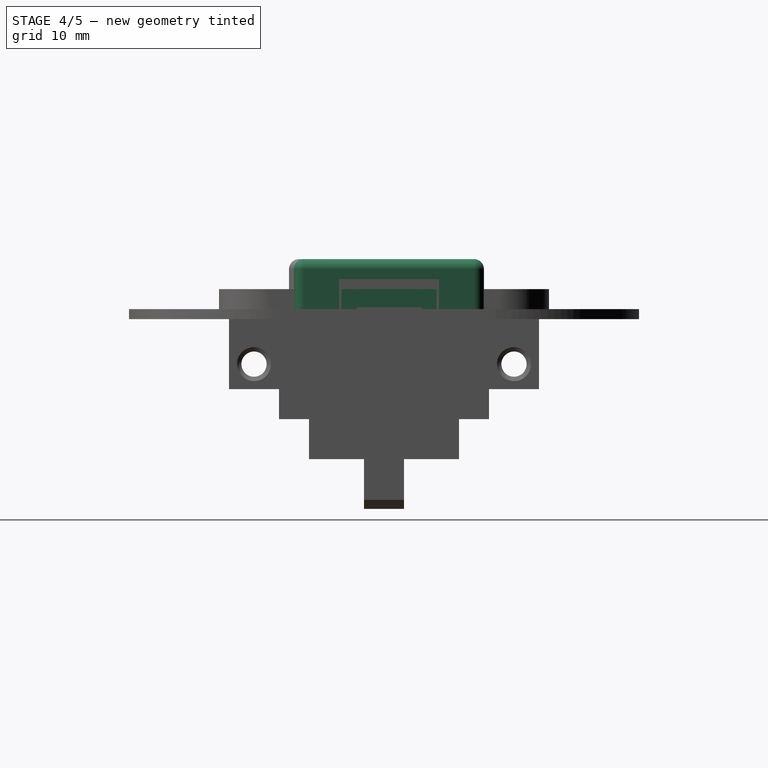
[diagram: stage 4 of 5 — right view after this stage's code; geometry added in this stage tinted green]
FEATURE [Part::Box] Box003  label="Cubo003"
  Height = 5
  Length = 4
  Placement = pos=(-2,50,45) rot=(0,0,1;0rad)
  Width = 19
FEATURE [Part::Fillet] Fillet
  Base = -> Box003
  Edges = 1 edges r=1: [Edge6]
FEATURE [Part::Fillet] Fillet001
  Base = -> Fillet
  Edges = 1 edges r=1: [Edge15]
FEATURE [Part::Fillet] Fillet002
  Base = -> Fillet001
  Edges = 1 edges r=1: [Edge7]
FEATURE [Part::Fillet] Fillet003
  Base = -> Fillet002
  Edges = 1 edges r=1: [Edge3]
  Placement = pos=(-26,0,6) rot=(0,0,1;0rad)
FEATURE [Part::Helix] Helix013  label="Espiral013"
  Angle = 0
  Height = 5
  LocalCoord = 0
  Pitch = 1
  Radius = 1.25
  Style = 1
FEATURE [Part::Box] Box034  label="Cubo034"
  Height = 36
  Length = 1.8
  Placement = pos=(0,0,0) rot=(0,1,0;1.5708rad)
  Width = 6
FEATURE [Part::Box] Box035  label="Cubo035"
  Height = 1.8
  Length = 3
  Placement = pos=(-3,-0.5,-1.81873) rot=(0,0,1;0rad)
  Width = 7
FEATURE [Part::Box] Box036  label="Cubo036"
  Height = 2
  Length = 9
  Placement = pos=(-36,63.25,45) rot=(0,0,1;0rad)
  Width = 1.5
FEATURE [Part::Box] Box037  label="Cubo037"
  Height = 2
  Length = 9
  Placement = pos=(-36,55.25,45) rot=(0,0,1;0rad)
  Width = 1.5
FEATURE [Part::MultiFuse] Fusion002018
  Placement = pos=(-0.9,63,58) rot=(0,0,1;3.14159rad)
  Shapes = -> [Box034,Box035]
FEATURE [Part::Box] Box038  label="Cubo038"
  Height = 3
  Length = 5
  Placement = pos=(-28.5,54.5,51) rot=(0,0,1;0rad)
  Width = 10
FEATURE [Part::Cut] Cut055
  Base = -> Fillet003
  Placement = pos=(0,0,-6) rot=(0,0,1;0rad)
  Tool = -> Box038
FEATURE [Part::Cylinder] Cylinder037  label="Cilindro037"
  Angle = 360
  Height = 10
  Placement = pos=(-26,53,42) rot=(0,0,1;0rad)
  Radius = 0.75
FEATURE [Part::Cylinder] Cylinder040  label="Cilindro040"
  Angle = 360
  Height = 10
  Placement = pos=(-26,66,42) rot=(0,0,1;0rad)
  Radius = 0.75
FEATURE [Part::Cut] Cut057
  Base = -> Cut055
  Tool = -> Cylinder037
FEATURE [Part::Cut] Cut058
  Base = -> Cut057
  Placement = pos=(0,0.5,0) rot=(0,0,1;0rad)
  Tool = -> Cylinder040
FEATURE [Sketcher::SketchObject] Sketch002
  sketch-geometry (3):
    g0: LineSegment StartX=0 StartY=0 StartZ=0 EndX=2.00001 EndY=0 EndZ=0
    g1: LineSegment StartX=3.9994 StartY=1.99872 StartZ=0 EndX=3.9994 EndY=3.99963 EndZ=0
    g2: ArcOfCircle CenterX=1.99995 CenterY=1.99946 CenterZ=0 NormalX=0 NormalY=0 NormalZ=1 Radius=1.99946 StartAngle=4.71242 EndAngle=6.28282
  constraints (5):
    c: Coincident(g0,g-1)
    c: PointOnObject(g0,g-1)
    c: Vertical(g1)
    c: Coincident(g2,g1)
    c: Coincident(g2,g0)
FEATURE [Sketcher::SketchObject] Sketch004
  Placement = pos=(0,0,0) rot=(0.57735,0.57735,0.57735;2.0944rad)
  sketch-geometry (1):
    g0: Circle CenterX=0 CenterY=0 CenterZ=0 NormalX=0 NormalY=0 NormalZ=1 Radius=0.6
  constraints (2):
    c: Coincident(g0,g-1)
    c: Radius(g0) = 0.6
FEATURE [Part::Sweep] Sweep
  Frenet = false
  Placement = pos=(-4.2,59,57) rot=(1,0,0;3.14159rad)
  Sections = -> [Sketch004]
  Solid = true
  Spine = -> Sketch002
  Transition = 1
FEATURE [Part::Cylinder] Cylinder041  label="Cilindro041"
  Angle = 360
  Height = 40
  Placement = pos=(-43,59,57) rot=(0,1,0;1.5708rad)
  Radius = 0.6
FEATURE [Part::MultiFuse] Fusion002020
  Shapes = -> [Sweep,Cylinder041]
FEATURE [Part::Cut] Cut061
  Base = -> Fusion002018
  Placement = pos=(0,0,-11) rot=(0,0,1;0rad)
  Tool = -> Fusion002020
FEATURE [Sketcher::SketchObject] Sketch031
  sketch-geometry (3):
    g0: LineSegment StartX=0 StartY=0 StartZ=0 EndX=2.00001 EndY=0 EndZ=0
    g1: LineSegment StartX=3.9994 StartY=1.99872 StartZ=0 EndX=3.9994 EndY=3.99963 EndZ=0
    g2: ArcOfCircle CenterX=1.99995 CenterY=1.99946 CenterZ=0 NormalX=0 NormalY=0 NormalZ=1 Radius=1.99946 StartAngle=4.71242 EndAngle=6.28282
  constraints (5):
    c: Coincident(g0,g-1)
    c: PointOnObject(g0,g-1)
    c: Vertical(g1)
    c: Coincident(g2,g1)
    c: Coincident(g2,g0)
FEATURE [Sketcher::SketchObject] Sketch032
  Placement = pos=(0,0,0) rot=(0.57735,0.57735,0.57735;2.0944rad)
  sketch-geometry (1):
    g0: Circle CenterX=0 CenterY=0 CenterZ=0 NormalX=0 NormalY=0 NormalZ=1 Radius=0.6
  constraints (2):
    c: Coincident(g0,g-1)
    c: Radius(g0) = 0.6
FEATURE [Part::Sweep] Sweep016
  Frenet = false
  Placement = pos=(-35,59,46.0001) rot=(-0.006804,0.008091,0.999944;3.14185rad)
  Sections = -> [Sketch032]
  Solid = true
  Spine = -> Sketch031
  Transition = 1
FEATURE [Sketcher::SketchObject] Sketch033
  sketch-geometry (3):
    g0: LineSegment StartX=0 StartY=0 StartZ=0 EndX=2.00001 EndY=0 EndZ=0
    g1: LineSegment StartX=3.9994 StartY=1.99872 StartZ=0 EndX=3.9994 EndY=3.99963 EndZ=0
    g2: ArcOfCircle CenterX=1.99995 CenterY=1.99946 CenterZ=0 NormalX=0 NormalY=0 NormalZ=1 Radius=1.99946 StartAngle=4.71242 EndAngle=6.28282
  constraints (5):
    c: Coincident(g0,g-1)
    c: PointOnObject(g0,g-1)
    c: Vertical(g1)
    c: Coincident(g2,g1)
    c: Coincident(g2,g0)
FEATURE [Sketcher::SketchObject] Sketch034
  Placement = pos=(0,0,0) rot=(0.57735,0.57735,0.57735;2.0944rad)
  sketch-geometry (1):
    g0: Circle CenterX=0 CenterY=0 CenterZ=0 NormalX=0 NormalY=0 NormalZ=1 Radius=0.6
  constraints (2):
    c: Coincident(g0,g-1)
    c: Radius(g0) = 0.6
FEATURE [Part::Sweep] Sweep017
  Frenet = false
  Placement = pos=(-39,53,50) rot=(0,1,0;1.5708rad)
  Sections = -> [Sketch034]
  Solid = true
  Spine = -> Sketch033
  Transition = 1
FEATURE [Part::Cut] Cut063
  Base = -> Cut062
  Tool = -> Cylinder043
FEATURE [Part::Cut] Cut064
  Base = -> Cut063
  Tool = -> Sweep017
FEATURE [Part::Cut] Cut065
  Base = -> Cut064
  Tool = -> Sweep016
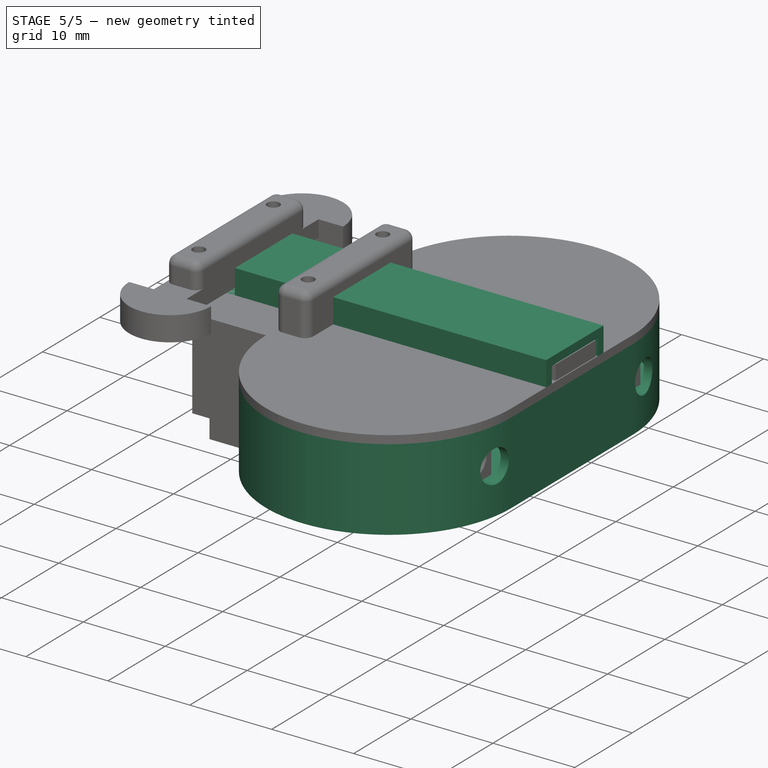
[diagram: stage 5 of 5 — iso view after this stage's code; geometry added in this stage tinted green]
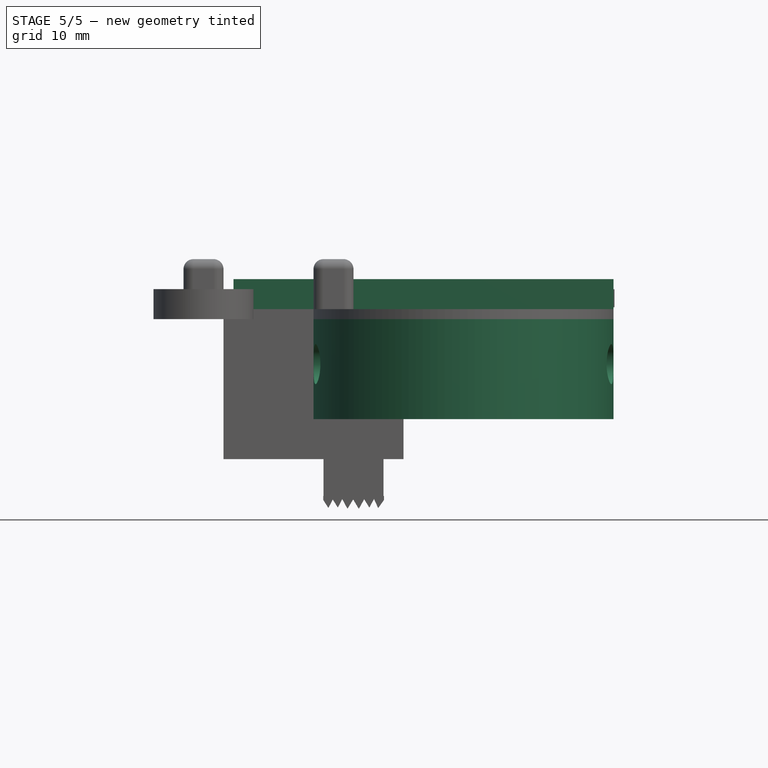
[diagram: stage 5 of 5 — front view after this stage's code; geometry added in this stage tinted green]
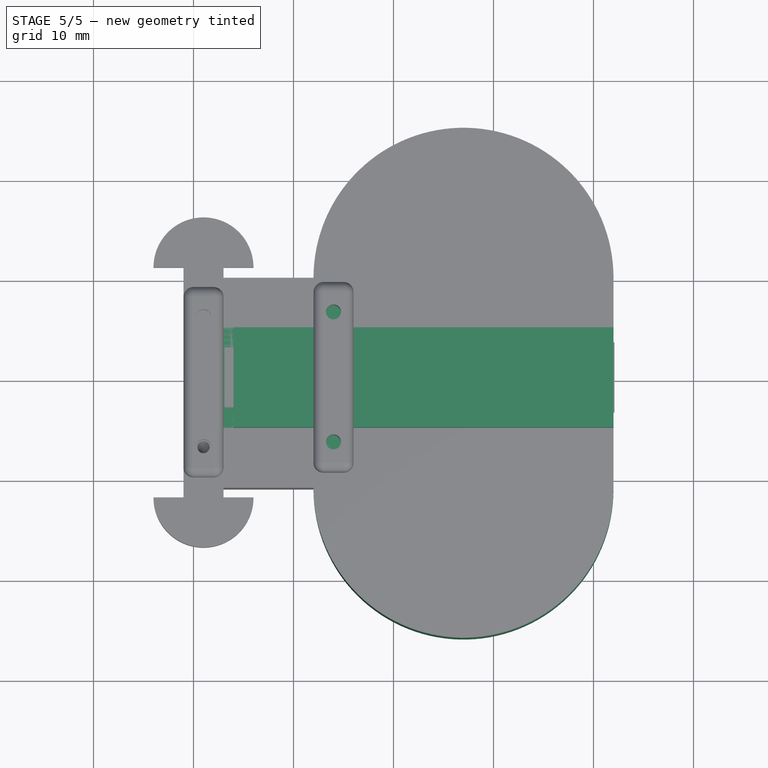
[diagram: stage 5 of 5 — top view after this stage's code; geometry added in this stage tinted green]
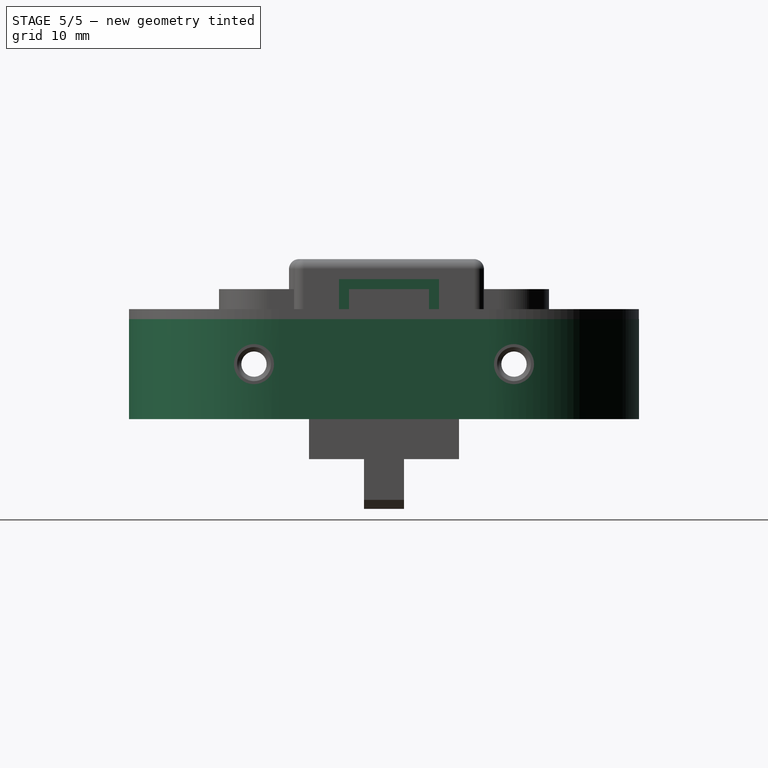
[diagram: stage 5 of 5 — right view after this stage's code; geometry added in this stage tinted green]
FEATURE [Part::Cylinder] Cylinder011  label="Cilindro011"
  Angle = 360
  Height = 10
  Placement = pos=(-32,72.5,39.5) rot=(0,1,0;1.5708rad)
  Radius = 2
FEATURE [Part::Cylinder] Cylinder013  label="Cilindro013"
  Angle = 360
  Height = 10
  Placement = pos=(-32,46.5,39.5) rot=(0,1,0;1.5708rad)
  Radius = 2
FEATURE [Part::Cylinder] Cylinder014  label="Cilindro014"
  Angle = 360
  Height = 10
  Placement = pos=(-6,46.5,39.5) rot=(0,1,0;1.5708rad)
  Radius = 2
FEATURE [Part::Cylinder] Cylinder015  label="Cilindro015"
  Angle = 360
  Height = 10
  Placement = pos=(-5,72.5,39.5) rot=(0,1,0;1.5708rad)
  Radius = 2
FEATURE [Part::Cylinder] Cylinder003  label="Cilindro003"
  Angle = 180
  Height = 8
  Placement = pos=(13,70,-36) rot=(0,1,0;3.14159rad)
  Radius = 14
FEATURE [Part::Cylinder] Cylinder  label="Cilindro"
  Angle = 180
  Height = 10
  Placement = pos=(13,70,-34) rot=(0,1,0;3.14159rad)
  Radius = 15
FEATURE [Part::Cylinder] Cylinder002  label="Cilindro002"
  Angle = 180
  Height = 8
  Placement = pos=(16,49,-36) rot=(1,0,0;3.14159rad)
  Radius = 14
FEATURE [Part::Cylinder] Cylinder001  label="Cilindro001"
  Angle = 180
  Height = 10
  Placement = pos=(16,49,-34) rot=(1,0,0;3.14159rad)
  Radius = 15
FEATURE [Part::Box] Box001  label="Cubo001"
  Height = 8
  Length = 28
  Placement = pos=(-1,49,-44) rot=(0,0,1;0rad)
  Width = 21
FEATURE [Part::Box] Box  label="Cubo"
  Height = 10
  Length = 30
  Placement = pos=(-2,49,-44) rot=(0,0,1;0rad)
  Width = 21
FEATURE [Part::Cut] Cut002
  Base = -> Cylinder
  Tool = -> Cylinder003
FEATURE [Part::Cut] Cut001
  Base = -> Cylinder001
  Placement = pos=(-3,0,0) rot=(0,0,1;0rad)
  Tool = -> Cylinder002
FEATURE [Part::Cut] Cut
  Base = -> Box
  Tool = -> Box001
FEATURE [Part::MultiFuse] Fusion
  Placement = pos=(0,0,0) rot=(0,1,0;3.14159rad)
  Shapes = -> [Cut,Cut001,Cut002]
FEATURE [Part::Cut] Cut021
  Base = -> Fusion
  Tool = -> Cylinder015
FEATURE [Part::Cut] Cut022
  Base = -> Cut021
  Tool = -> Cylinder013
FEATURE [Part::Cut] Cut023
  Base = -> Cut022
  Tool = -> Cylinder014
FEATURE [Part::Cut] Cut024
  Base = -> Cut023
  Tool = -> Cylinder011
FEATURE [Part::Cylinder] Cylinder017  label="Cilindro017"
  Angle = 360
  Height = 10
  Placement = pos=(-14,90,38.5) rot=(1,0,0;1.5708rad)
  Radius = 1
FEATURE [Part::Cut] Cut025
  Base = -> Cut024
  Tool = -> Cylinder017
FEATURE [Part::Box] Box005  label="Cubo005"
  Height = 3
  Length = 38
  Placement = pos=(-37,55,45) rot=(0,0,1;0rad)
  Width = 10
FEATURE [Part::Box] Box006  label="Cubo006"
  Height = 2
  Length = 39
  Placement = pos=(-37,56,45) rot=(0,0,1;0rad)
  Width = 8
FEATURE [Part::Box] Box007  label="Cubo007"
  Height = 5
  Length = 9
  Placement = pos=(-37,55,40) rot=(0,0,1;0rad)
  Width = 10
FEATURE [Part::Cut] Cut054
  Base = -> Box005
  Placement = pos=(1,0,0) rot=(0,0,1;0rad)
  Tool = -> Box006
FEATURE [Part::MultiFuse] Fusion002019
  Shapes = -> [Cut054,Box036,Box037]
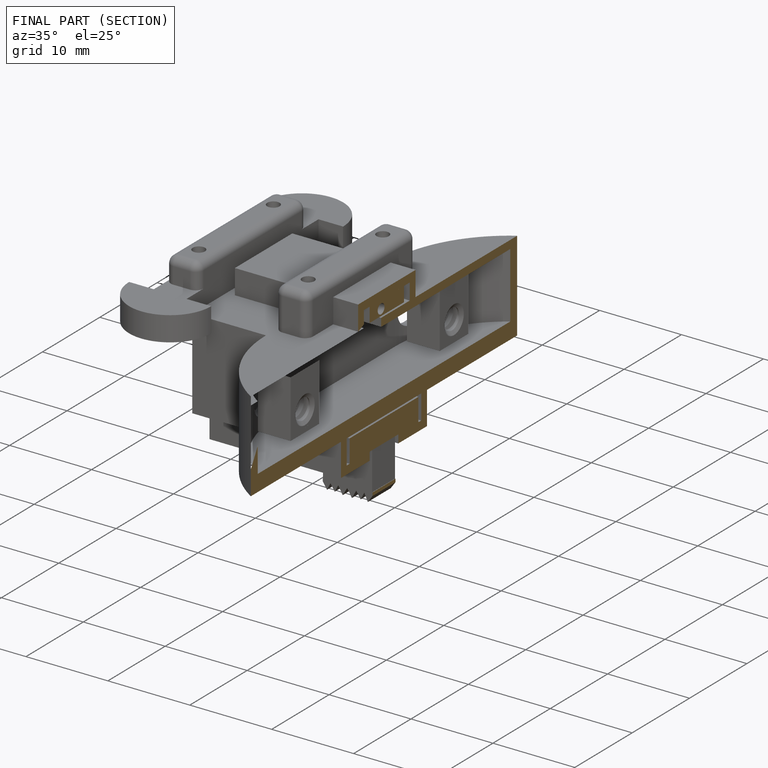
[diagram: finished part — half-section view (interior)]
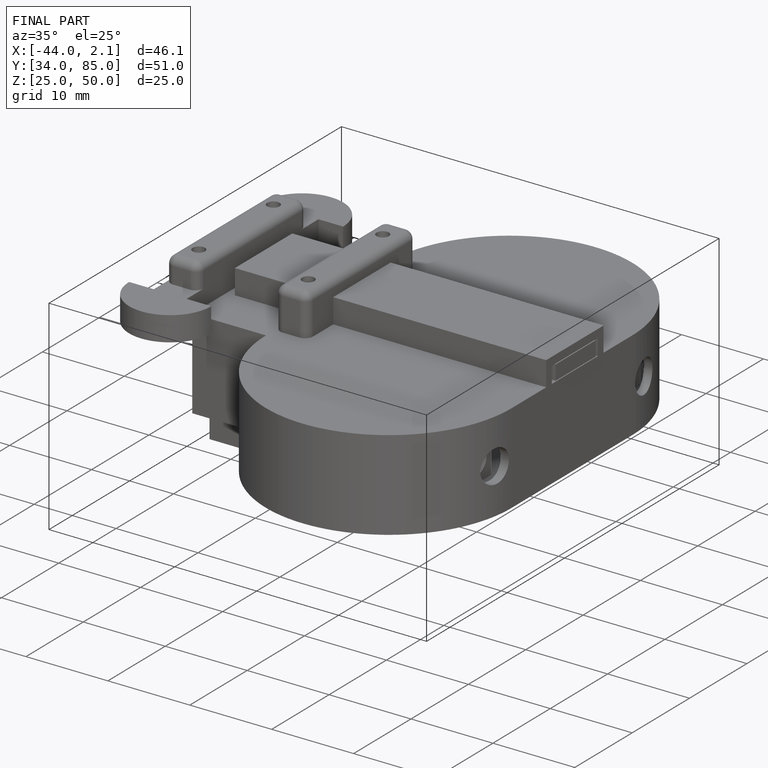
[diagram: finished part — iso view with bounding-box wireframe]
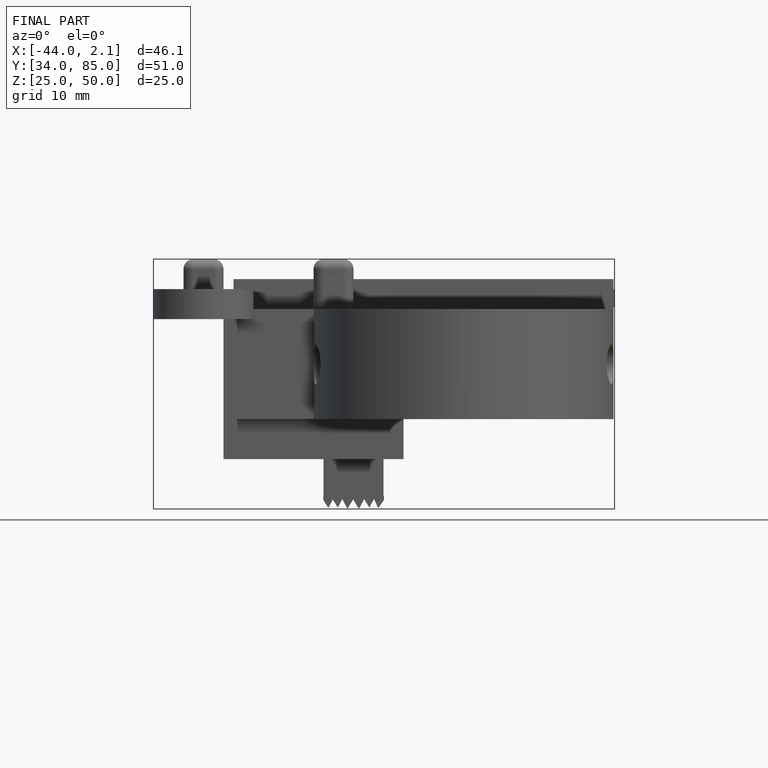
[diagram: finished part — front view with bounding-box wireframe]
